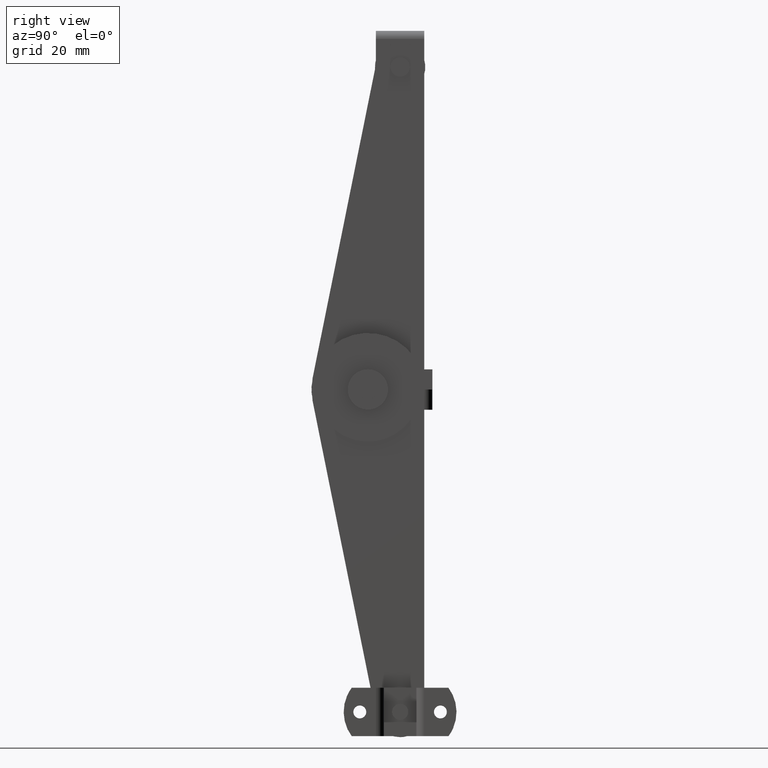
[diagram: clean part render]
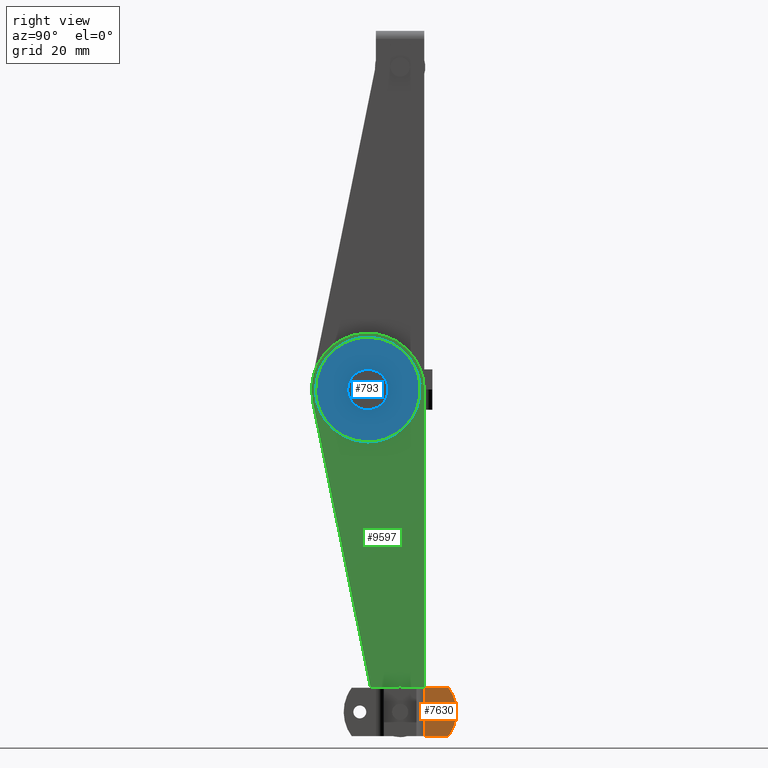
[diagram: same view with three faces highlighted in distinct colors, each labeled with its STEP entity id]
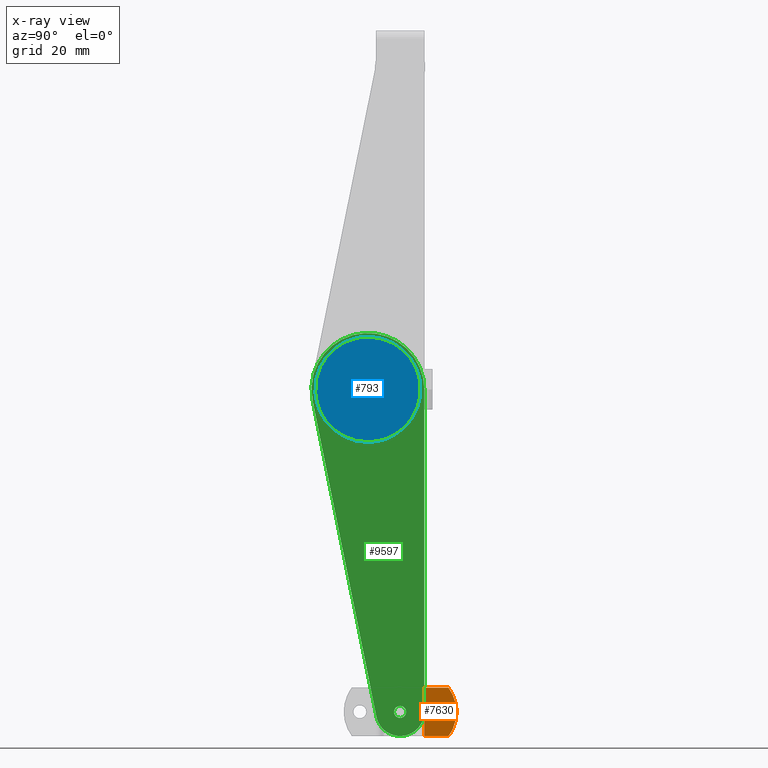
[diagram: x-ray of the same camera — body ghosted, the three highlighted faces saturated]
A machine part, right view with three faces highlighted in distinct colors.
The next image is the same camera in x-ray (body ghosted, the three faces saturated) — at least one of them is partly hidden behind the body in this view.
Their STEP definitions:

[orange] entity #7630 — the highlighted face is a freeform B-spline surface patch.
#6617=CARTESIAN_POINT('',(-2.109424E-015,10.0,-81.600000000000009));
#6618=VERTEX_POINT('',#6617);
#6619=CARTESIAN_POINT('',(-2.118055E-015,10.913344372013061,-81.313697856476921));
#6620=VERTEX_POINT('',#6619);
#6621=CARTESIAN_POINT('',(-2.109424E-015,10.0,-81.600000000000009));
#6622=CARTESIAN_POINT('',(-2.109424E-015,10.501545138603925,-81.599999999999994));
#6623=CARTESIAN_POINT('',(-2.118055E-015,10.913344372013055,-81.313697856476921));
#6631=(BOUNDED_CURVE()B_SPLINE_CURVE(2,(#6621,#6622,#6623),.UNSPECIFIED.,.F.,.U.)B_SPLINE_CURVE_WITH_KNOTS((3,3),(0.500000000000000,0.598090608945358),.UNSPECIFIED.)CURVE()GEOMETRIC_REPRESENTATION_ITEM()RATIONAL_B_SPLINE_CURVE((1.0,0.885079703242490,0.860340221597983))REPRESENTATION_ITEM(''));
#6632=EDGE_CURVE('',#6618,#6620,#6631,.T.);
#6705=CARTESIAN_POINT('',(-2.097281E-015,11.595067733961390,-80.125534553312121));
#6706=VERTEX_POINT('',#6705);
#6712=CARTESIAN_POINT('',(-2.109424E-015,10.0,-78.399999999999991));
#6713=VERTEX_POINT('',#6712);
#6714=CARTESIAN_POINT('',(-2.097281E-015,11.595067733961386,-80.125534553312121));
#6715=CARTESIAN_POINT('',(-2.109424E-015,11.599999999999998,-80.062864171360530));
#6716=CARTESIAN_POINT('',(-2.109424E-015,11.600000000000000,-80.0));
#6717=CARTESIAN_POINT('',(-2.109424E-015,11.600000000000001,-78.399999999999991));
#6718=CARTESIAN_POINT('',(-2.109424E-015,10.0,-78.399999999999991));
#6726=(BOUNDED_CURVE()B_SPLINE_CURVE(2,(#6714,#6715,#6716,#6717,#6718),.UNSPECIFIED.,.F.,.U.)B_SPLINE_CURVE_WITH_KNOTS((3,2,3),(0.736331300601047,0.750000000000000,1.0),.UNSPECIFIED.)CURVE()GEOMETRIC_REPRESENTATION_ITEM()RATIONAL_B_SPLINE_CURVE((0.969723356105619,0.983986122544189,1.0,0.707106781186548,1.0))REPRESENTATION_ITEM(''));
#6727=EDGE_CURVE('',#6706,#6713,#6726,.T.);
#6729=CARTESIAN_POINT('',(-2.109424E-015,10.0,-78.399999999999991));
#6730=CARTESIAN_POINT('',(-2.109424E-015,8.400000000000000,-78.399999999999991));
#6731=CARTESIAN_POINT('',(-2.109424E-015,8.400000000000000,-80.0));
#6732=CARTESIAN_POINT('',(-2.109424E-015,8.400000000000000,-81.600000000000009));
#6733=CARTESIAN_POINT('',(-2.109424E-015,10.0,-81.600000000000009));
#6741=(BOUNDED_CURVE()B_SPLINE_CURVE(2,(#6729,#6730,#6731,#6732,#6733),.UNSPECIFIED.,.F.,.U.)B_SPLINE_CURVE_WITH_KNOTS((3,2,3),(0.0,0.250000000000000,0.500000000000000),.UNSPECIFIED.)CURVE()GEOMETRIC_REPRESENTATION_ITEM()RATIONAL_B_SPLINE_CURVE((1.0,0.707106781186548,1.0,0.707106781186548,1.0))REPRESENTATION_ITEM(''));
#6742=EDGE_CURVE('',#6713,#6618,#6741,.T.);
#6761=CARTESIAN_POINT('',(-2.118055E-015,10.913344372013057,-81.313697856476921));
#6762=CARTESIAN_POINT('',(-2.109424E-015,11.535605594804981,-80.881072665697104));
#6763=CARTESIAN_POINT('',(-2.097281E-015,11.595067733961395,-80.125534553312121));
#6771=(BOUNDED_CURVE()B_SPLINE_CURVE(2,(#6761,#6762,#6763),.UNSPECIFIED.,.F.,.U.)B_SPLINE_CURVE_WITH_KNOTS((3,3),(0.598090608945359,0.736331300601048),.UNSPECIFIED.)CURVE()GEOMETRIC_REPRESENTATION_ITEM()RATIONAL_B_SPLINE_CURVE((0.860340221597983,0.825474467470135,0.969723356105621))REPRESENTATION_ITEM(''));
#6772=EDGE_CURVE('',#6620,#6706,#6771,.T.);
#7189=CARTESIAN_POINT('',(0.0,12.000011999975120,-74.000015999999889));
#7190=VERTEX_POINT('',#7189);
#7196=CARTESIAN_POINT('',(0.0,11.999983854799799,-86.000016000000002));
#7197=VERTEX_POINT('',#7196);
#7198=CARTESIAN_POINT('',(0.0,12.000011999975120,-74.000015999999889));
#7199=CARTESIAN_POINT('',(0.0,16.499999839368552,-80.000025559604353));
#7200=CARTESIAN_POINT('',(0.0,11.999983854799799,-86.000016000000002));
#7208=(BOUNDED_CURVE()B_SPLINE_CURVE(2,(#7198,#7199,#7200),.UNSPECIFIED.,.F.,.U.)CURVE()GEOMETRIC_REPRESENTATION_ITEM()QUASI_UNIFORM_CURVE()RATIONAL_B_SPLINE_CURVE((1.0,0.799999925385712,1.0))REPRESENTATION_ITEM(''));
#7209=EDGE_CURVE('',#7190,#7197,#7208,.T.);
#7291=CARTESIAN_POINT('',(0.0,6.0,-86.000016000000002));
#7292=VERTEX_POINT('',#7291);
#7293=CARTESIAN_POINT('',(0.0,6.0,-86.000016000000002));
#7294=CARTESIAN_POINT('',(0.0,11.999983854799799,-86.000016000000002));
#7295=QUASI_UNIFORM_CURVE('',1,(#7293,#7294),.UNSPECIFIED.,.F.,.U.);
#7296=EDGE_CURVE('',#7292,#7197,#7295,.T.);
#7409=CARTESIAN_POINT('',(0.0,6.0,-74.000016000000002));
#7410=VERTEX_POINT('',#7409);
#7424=CARTESIAN_POINT('',(0.0,6.0,-74.000016000000002));
#7425=CARTESIAN_POINT('',(0.0,12.000011999975120,-74.000015999999889));
#7426=QUASI_UNIFORM_CURVE('',1,(#7424,#7425),.UNSPECIFIED.,.F.,.U.);
#7427=EDGE_CURVE('',#7410,#7190,#7426,.T.);
#7609=CARTESIAN_POINT('',(0.0,5.600400081763249,-73.400615277598746));
#7610=CARTESIAN_POINT('',(0.0,5.600400081763249,-86.599415434940852));
#7611=CARTESIAN_POINT('',(0.0,14.399598806332969,-73.400615277598746));
#7612=CARTESIAN_POINT('',(0.0,14.399598806332969,-86.599415434940852));
#7613=B_SPLINE_SURFACE_WITH_KNOTS('',1,1,((#7609,#7611),(#7610,#7612)),.UNSPECIFIED.,.F.,.F.,.U.,(2,2),(2,2),(0.0,13.198800157342109),(0.0,8.799198724569722),.UNSPECIFIED.);
#7614=ORIENTED_EDGE('',*,*,#7209,.F.);
#7615=ORIENTED_EDGE('',*,*,#7427,.F.);
#7616=CARTESIAN_POINT('',(0.0,6.0,-74.000016000000002));
#7617=CARTESIAN_POINT('',(0.0,6.0,-86.000016000000002));
#7618=QUASI_UNIFORM_CURVE('',1,(#7616,#7617),.UNSPECIFIED.,.F.,.U.);
#7619=EDGE_CURVE('',#7410,#7292,#7618,.T.);
#7620=ORIENTED_EDGE('',*,*,#7619,.T.);
#7621=ORIENTED_EDGE('',*,*,#7296,.T.);
#7622=EDGE_LOOP('',(#7614,#7615,#7620,#7621));
#7623=FACE_OUTER_BOUND('',#7622,.T.);
#7624=ORIENTED_EDGE('',*,*,#6742,.F.);
#7625=ORIENTED_EDGE('',*,*,#6727,.F.);
#7626=ORIENTED_EDGE('',*,*,#6772,.F.);
#7627=ORIENTED_EDGE('',*,*,#6632,.F.);
#7628=EDGE_LOOP('',(#7624,#7625,#7626,#7627));
#7629=FACE_BOUND('',#7628,.T.);
#7630=ADVANCED_FACE('',(#7623,#7629),#7613,.T.);

[blue] entity #793 — the highlighted face is a freeform B-spline surface patch.
#442=CARTESIAN_POINT('',(-5.899963316634739,-9.497202197502414,-0.091572811434084));
#443=VERTEX_POINT('',#442);
#449=CARTESIAN_POINT('',(-5.899963316634739,-8.0,-1.500000000000000));
#450=VERTEX_POINT('',#449);
#451=CARTESIAN_POINT('',(-5.899963316634739,-8.0,-1.500000000000000));
#452=CARTESIAN_POINT('',(-5.899963316634740,-9.411059096332743,-1.500000000000000));
#453=CARTESIAN_POINT('',(-5.899963316634739,-9.497202197502414,-0.091572811434084));
#461=(BOUNDED_CURVE()B_SPLINE_CURVE(2,(#451,#452,#453),.UNSPECIFIED.,.F.,.U.)B_SPLINE_CURVE_WITH_KNOTS((3,3),(0.500000000000000,0.739332961750605),.UNSPECIFIED.)CURVE()GEOMETRIC_REPRESENTATION_ITEM()RATIONAL_B_SPLINE_CURVE((1.0,0.719603993858834,0.976072040620116))REPRESENTATION_ITEM(''));
#462=EDGE_CURVE('',#450,#443,#461,.T.);
#464=CARTESIAN_POINT('',(-5.899963316634739,-6.510485710456642,0.177051352003156));
#465=VERTEX_POINT('',#464);
#466=CARTESIAN_POINT('',(-5.899963316634740,-6.510485710456643,0.177051352003156));
#467=CARTESIAN_POINT('',(-5.899963316634739,-6.500000000000001,0.088836179496074));
#468=CARTESIAN_POINT('',(-5.899963316634739,-6.500000000000001,4.898425E-016));
#469=CARTESIAN_POINT('',(-5.899963316634739,-6.500000000000003,-1.500000000000000));
#470=CARTESIAN_POINT('',(-5.899963316634739,-8.0,-1.500000000000000));
#478=(BOUNDED_CURVE()B_SPLINE_CURVE(2,(#466,#467,#468,#469,#470),.UNSPECIFIED.,.F.,.U.)B_SPLINE_CURVE_WITH_KNOTS((3,2,3),(0.229562473511556,0.250000000000000,0.500000000000000),.UNSPECIFIED.)CURVE()GEOMETRIC_REPRESENTATION_ITEM()RATIONAL_B_SPLINE_CURVE((0.956026754179872,0.976055948328857,1.0,0.707106781186548,1.0))REPRESENTATION_ITEM(''));
#479=EDGE_CURVE('',#465,#450,#478,.T.);
#523=CARTESIAN_POINT('',(-5.899963316634739,-8.0,1.500000000000000));
#524=VERTEX_POINT('',#523);
#525=CARTESIAN_POINT('',(-5.899963316634739,-8.0,1.500000000000000));
#526=CARTESIAN_POINT('',(-5.899963316634739,-6.667738211105410,1.500000000000000));
#527=CARTESIAN_POINT('',(-5.899963316634739,-6.510485710456642,0.177051352003156));
#535=(BOUNDED_CURVE()B_SPLINE_CURVE(2,(#525,#526,#527),.UNSPECIFIED.,.F.,.U.)B_SPLINE_CURVE_WITH_KNOTS((3,3),(0.0,0.229562473511556),.UNSPECIFIED.)CURVE()GEOMETRIC_REPRESENTATION_ITEM()RATIONAL_B_SPLINE_CURVE((1.0,0.731050832857690,0.956026754179871))REPRESENTATION_ITEM(''));
#536=EDGE_CURVE('',#524,#465,#535,.T.);
#538=CARTESIAN_POINT('',(-5.899963316634739,-9.497202197502414,-0.091572811434084));
#539=CARTESIAN_POINT('',(-5.899963316634739,-9.500000000000000,-0.045829147085660));
#540=CARTESIAN_POINT('',(-5.899963316634739,-9.500000000000000,4.898425E-016));
#541=CARTESIAN_POINT('',(-5.899963316634739,-9.500000000000000,1.500000000000001));
#542=CARTESIAN_POINT('',(-5.899963316634739,-8.0,1.500000000000000));
#550=(BOUNDED_CURVE()B_SPLINE_CURVE(2,(#538,#539,#540,#541,#542),.UNSPECIFIED.,.F.,.U.)B_SPLINE_CURVE_WITH_KNOTS((3,2,3),(0.739332961750605,0.750000000000000,1.0),.UNSPECIFIED.)CURVE()GEOMETRIC_REPRESENTATION_ITEM()RATIONAL_B_SPLINE_CURVE((0.976072040620116,0.987502787327714,1.0,0.707106781186548,1.0))REPRESENTATION_ITEM(''));
#551=EDGE_CURVE('',#443,#524,#550,.T.);
#613=CARTESIAN_POINT('',(-5.899963316634739,4.909123842707697,1.534445050705831));
#614=VERTEX_POINT('',#613);
#620=CARTESIAN_POINT('',(-5.899963316634739,-8.0,-13.0));
#621=VERTEX_POINT('',#620);
#622=CARTESIAN_POINT('',(-5.899963316634739,4.909123842707697,1.534445050705831));
#623=CARTESIAN_POINT('',(-5.899963316634739,5.000000000000001,0.769913555644579));
#624=CARTESIAN_POINT('',(-5.899963316634739,4.999999999999999,4.898425E-016));
#625=CARTESIAN_POINT('',(-5.899963316634739,4.999999999999999,-13.0));
#626=CARTESIAN_POINT('',(-5.899963316634739,-8.0,-13.0));
#634=(BOUNDED_CURVE()B_SPLINE_CURVE(2,(#622,#623,#624,#625,#626),.UNSPECIFIED.,.F.,.U.)B_SPLINE_CURVE_WITH_KNOTS((3,2,3),(0.229562473511246,0.250000000000000,0.500000000000000),.UNSPECIFIED.)CURVE()GEOMETRIC_REPRESENTATION_ITEM()RATIONAL_B_SPLINE_CURVE((0.956026754179265,0.976055948328495,1.0,0.707106781186547,1.0))REPRESENTATION_ITEM(''));
#635=EDGE_CURVE('',#614,#621,#634,.T.);
#637=CARTESIAN_POINT('',(-5.899963316634739,-20.975752379467082,-0.793631014234179));
#638=VERTEX_POINT('',#637);
#639=CARTESIAN_POINT('',(-5.899963316634739,-8.0,-13.0));
#640=CARTESIAN_POINT('',(-5.899963316634739,-20.229178869243242,-13.0));
#641=CARTESIAN_POINT('',(-5.899963316634739,-20.975752379467078,-0.793631014234179));
#649=(BOUNDED_CURVE()B_SPLINE_CURVE(2,(#639,#640,#641),.UNSPECIFIED.,.F.,.U.)B_SPLINE_CURVE_WITH_KNOTS((3,3),(0.500000000000000,0.739332962234493),.UNSPECIFIED.)CURVE()GEOMETRIC_REPRESENTATION_ITEM()RATIONAL_B_SPLINE_CURVE((1.0,0.719603993291923,0.976072041657181))REPRESENTATION_ITEM(''));
#650=EDGE_CURVE('',#621,#638,#649,.T.);
#724=CARTESIAN_POINT('',(-5.899963316634739,-8.0,13.0));
#725=VERTEX_POINT('',#724);
#726=CARTESIAN_POINT('',(-5.899963316634739,-20.975752379467075,-0.793631014234179));
#727=CARTESIAN_POINT('',(-5.899963316634739,-20.999999999999993,-0.397185923163483));
#728=CARTESIAN_POINT('',(-5.899963316634739,-21.0,4.898425E-016));
#729=CARTESIAN_POINT('',(-5.899963316634739,-20.999999999999989,13.0));
#730=CARTESIAN_POINT('',(-5.899963316634739,-8.0,13.0));
#738=(BOUNDED_CURVE()B_SPLINE_CURVE(2,(#726,#727,#728,#729,#730),.UNSPECIFIED.,.F.,.U.)B_SPLINE_CURVE_WITH_KNOTS((3,2,3),(0.739332962234494,0.750000000000000,1.0),.UNSPECIFIED.)CURVE()GEOMETRIC_REPRESENTATION_ITEM()RATIONAL_B_SPLINE_CURVE((0.976072041657183,0.987502787894625,1.0,0.707106781186547,1.0))REPRESENTATION_ITEM(''));
#739=EDGE_CURVE('',#638,#725,#738,.T.);
#741=CARTESIAN_POINT('',(-5.899963316634739,-8.0,13.0));
#742=CARTESIAN_POINT('',(-5.899963316634739,3.546268837065187,13.000000000000002));
#743=CARTESIAN_POINT('',(-5.899963316634739,4.909123842707697,1.534445050705831));
#751=(BOUNDED_CURVE()B_SPLINE_CURVE(2,(#741,#742,#743),.UNSPECIFIED.,.F.,.U.)B_SPLINE_CURVE_WITH_KNOTS((3,3),(0.0,0.229562473511246),.UNSPECIFIED.)CURVE()GEOMETRIC_REPRESENTATION_ITEM()RATIONAL_B_SPLINE_CURVE((1.0,0.731050832858053,0.956026754179265))REPRESENTATION_ITEM(''));
#752=EDGE_CURVE('',#725,#614,#751,.T.);
#776=CARTESIAN_POINT('',(-5.899963316634770,6.298464238961536,-14.298699949606950));
#777=CARTESIAN_POINT('',(-5.899963316634770,-22.298383575995761,-14.298699949606950));
#778=CARTESIAN_POINT('',(-5.899963316634770,6.298464238961536,14.298700646981301));
#779=CARTESIAN_POINT('',(-5.899963316634770,-22.298383575995761,14.298700646981301));
#780=B_SPLINE_SURFACE_WITH_KNOTS('',1,1,((#776,#778),(#777,#779)),.UNSPECIFIED.,.F.,.F.,.U.,(2,2),(2,2),(0.0,28.596847814957300),(0.0,28.597400596588251),.UNSPECIFIED.);
#781=ORIENTED_EDGE('',*,*,#739,.F.);
#782=ORIENTED_EDGE('',*,*,#650,.F.);
#783=ORIENTED_EDGE('',*,*,#635,.F.);
#784=ORIENTED_EDGE('',*,*,#752,.F.);
#785=EDGE_LOOP('',(#781,#782,#783,#784));
#786=FACE_OUTER_BOUND('',#785,.T.);
#787=ORIENTED_EDGE('',*,*,#462,.T.);
#788=ORIENTED_EDGE('',*,*,#551,.T.);
#789=ORIENTED_EDGE('',*,*,#536,.T.);
#790=ORIENTED_EDGE('',*,*,#479,.T.);
#791=EDGE_LOOP('',(#787,#788,#789,#790));
#792=FACE_BOUND('',#791,.T.);
#793=ADVANCED_FACE('',(#786,#792),#780,.F.);

[green] entity #9597 — the highlighted face is a freeform B-spline surface patch.
#9058=CARTESIAN_POINT('',(-6.500000000000000,1.183291E-029,-78.500000000000000));
#9059=VERTEX_POINT('',#9058);
#9060=CARTESIAN_POINT('',(-6.500000000000000,1.495376000598305,-79.882311356390630));
#9061=VERTEX_POINT('',#9060);
#9062=CARTESIAN_POINT('',(-6.500000000000000,1.183291E-029,-78.500000000000000));
#9063=CARTESIAN_POINT('',(-6.500000000000001,1.386585737454543,-78.500000000000000));
#9064=CARTESIAN_POINT('',(-6.500000000000000,1.495376000598305,-79.882311356390630));
#9072=(BOUNDED_CURVE()B_SPLINE_CURVE(2,(#9062,#9063,#9064),.UNSPECIFIED.,.F.,.U.)B_SPLINE_CURVE_WITH_KNOTS((3,3),(0.0,0.236331300628728),.UNSPECIFIED.)CURVE()GEOMETRIC_REPRESENTATION_ITEM()RATIONAL_B_SPLINE_CURVE((1.0,0.723120658609928,0.969723356163387))REPRESENTATION_ITEM(''));
#9073=EDGE_CURVE('',#9059,#9061,#9072,.T.);
#9075=CARTESIAN_POINT('',(-6.500000000000000,-1.495376000598305,-80.117688643609384));
#9076=VERTEX_POINT('',#9075);
#9077=CARTESIAN_POINT('',(-6.500000000000000,-1.495376000598305,-80.117688643609384));
#9078=CARTESIAN_POINT('',(-6.500000000000000,-1.500000000000001,-80.058935160529202));
#9079=CARTESIAN_POINT('',(-6.500000000000000,-1.500000000000000,-80.0));
#9080=CARTESIAN_POINT('',(-6.500000000000001,-1.500000000000000,-78.500000000000000));
#9081=CARTESIAN_POINT('',(-6.500000000000000,1.183291E-029,-78.500000000000000));
#9089=(BOUNDED_CURVE()B_SPLINE_CURVE(2,(#9077,#9078,#9079,#9080,#9081),.UNSPECIFIED.,.F.,.U.)B_SPLINE_CURVE_WITH_KNOTS((3,2,3),(0.736331300628728,0.750000000000000,1.0),.UNSPECIFIED.)CURVE()GEOMETRIC_REPRESENTATION_ITEM()RATIONAL_B_SPLINE_CURVE((0.969723356163386,0.983986122576618,1.0,0.707106781186548,1.0))REPRESENTATION_ITEM(''));
#9090=EDGE_CURVE('',#9076,#9059,#9089,.T.);
#9157=CARTESIAN_POINT('',(-6.500000000000000,1.183291E-029,-81.500000000000000));
#9158=VERTEX_POINT('',#9157);
#9159=CARTESIAN_POINT('',(-6.500000000000001,1.495376000598305,-79.882311356390630));
#9160=CARTESIAN_POINT('',(-6.500000000000000,1.500000000000000,-79.941064839470812));
#9161=CARTESIAN_POINT('',(-6.500000000000000,1.500000000000000,-80.0));
#9162=CARTESIAN_POINT('',(-6.500000000000001,1.500000000000000,-81.500000000000000));
#9163=CARTESIAN_POINT('',(-6.500000000000000,1.183291E-029,-81.500000000000000));
#9171=(BOUNDED_CURVE()B_SPLINE_CURVE(2,(#9159,#9160,#9161,#9162,#9163),.UNSPECIFIED.,.F.,.U.)B_SPLINE_CURVE_WITH_KNOTS((3,2,3),(0.236331300628728,0.250000000000000,0.500000000000000),.UNSPECIFIED.)CURVE()GEOMETRIC_REPRESENTATION_ITEM()RATIONAL_B_SPLINE_CURVE((0.969723356163387,0.983986122576619,1.0,0.707106781186548,1.0))REPRESENTATION_ITEM(''));
#9172=EDGE_CURVE('',#9061,#9158,#9171,.T.);
#9206=CARTESIAN_POINT('',(-6.500000000000000,1.183291E-029,-81.500000000000000));
#9207=CARTESIAN_POINT('',(-6.500000000000000,-1.386585737454533,-81.500000000000000));
#9208=CARTESIAN_POINT('',(-6.500000000000000,-1.495376000598305,-80.117688643609384));
#9216=(BOUNDED_CURVE()B_SPLINE_CURVE(2,(#9206,#9207,#9208),.UNSPECIFIED.,.F.,.U.)B_SPLINE_CURVE_WITH_KNOTS((3,3),(0.500000000000000,0.736331300628727),.UNSPECIFIED.)CURVE()GEOMETRIC_REPRESENTATION_ITEM()RATIONAL_B_SPLINE_CURVE((1.0,0.723120658609930,0.969723356163385))REPRESENTATION_ITEM(''));
#9217=EDGE_CURVE('',#9158,#9076,#9216,.T.);
#9240=CARTESIAN_POINT('',(-6.500000000000000,-8.0,1.500000000000000));
#9241=VERTEX_POINT('',#9240);
#9242=CARTESIAN_POINT('',(-6.500000000000001,-6.504623999401696,0.117688643609388));
#9243=VERTEX_POINT('',#9242);
#9244=CARTESIAN_POINT('',(-6.500000000000000,-8.0,1.500000000000000));
#9245=CARTESIAN_POINT('',(-6.500000000000000,-6.613414262545469,1.500000000000001));
#9246=CARTESIAN_POINT('',(-6.500000000000002,-6.504623999401696,0.117688643609388));
#9254=(BOUNDED_CURVE()B_SPLINE_CURVE(2,(#9244,#9245,#9246),.UNSPECIFIED.,.F.,.U.)B_SPLINE_CURVE_WITH_KNOTS((3,3),(0.0,0.236331300628727),.UNSPECIFIED.)CURVE()GEOMETRIC_REPRESENTATION_ITEM()RATIONAL_B_SPLINE_CURVE((1.0,0.723120658609930,0.969723356163385))REPRESENTATION_ITEM(''));
#9255=EDGE_CURVE('',#9241,#9243,#9254,.T.);
#9257=CARTESIAN_POINT('',(-6.500000000000000,-9.495376000598306,-0.117688643609387));
#9258=VERTEX_POINT('',#9257);
#9259=CARTESIAN_POINT('',(-6.500000000000000,-9.495376000598307,-0.117688643609387));
#9260=CARTESIAN_POINT('',(-6.500000000000001,-9.500000000000000,-0.058935160529206));
#9261=CARTESIAN_POINT('',(-6.500000000000000,-9.500000000000000,4.898425E-016));
#9262=CARTESIAN_POINT('',(-6.500000000000001,-9.500000000000000,1.500000000000001));
#9263=CARTESIAN_POINT('',(-6.500000000000000,-8.0,1.500000000000000));
#9271=(BOUNDED_CURVE()B_SPLINE_CURVE(2,(#9259,#9260,#9261,#9262,#9263),.UNSPECIFIED.,.F.,.U.)B_SPLINE_CURVE_WITH_KNOTS((3,2,3),(0.736331300628727,0.750000000000000,1.0),.UNSPECIFIED.)CURVE()GEOMETRIC_REPRESENTATION_ITEM()RATIONAL_B_SPLINE_CURVE((0.969723356163385,0.983986122576618,1.0,0.707106781186548,1.0))REPRESENTATION_ITEM(''));
#9272=EDGE_CURVE('',#9258,#9241,#9271,.T.);
#9339=CARTESIAN_POINT('',(-6.500000000000000,-8.0,-1.500000000000000));
#9340=VERTEX_POINT('',#9339);
#9341=CARTESIAN_POINT('',(-6.500000000000002,-6.504623999401696,0.117688643609388));
#9342=CARTESIAN_POINT('',(-6.500000000000001,-6.500000000000001,0.058935160529207));
#9343=CARTESIAN_POINT('',(-6.500000000000000,-6.500000000000001,4.898425E-016));
#9344=CARTESIAN_POINT('',(-6.500000000000001,-6.500000000000003,-1.500000000000000));
#9345=CARTESIAN_POINT('',(-6.500000000000000,-8.0,-1.500000000000000));
#9353=(BOUNDED_CURVE()B_SPLINE_CURVE(2,(#9341,#9342,#9343,#9344,#9345),.UNSPECIFIED.,.F.,.U.)B_SPLINE_CURVE_WITH_KNOTS((3,2,3),(0.236331300628727,0.250000000000000,0.500000000000000),.UNSPECIFIED.)CURVE()GEOMETRIC_REPRESENTATION_ITEM()RATIONAL_B_SPLINE_CURVE((0.969723356163385,0.983986122576618,1.0,0.707106781186548,1.0))REPRESENTATION_ITEM(''));
#9354=EDGE_CURVE('',#9243,#9340,#9353,.T.);
#9388=CARTESIAN_POINT('',(-6.500000000000000,-8.0,-1.500000000000000));
#9389=CARTESIAN_POINT('',(-6.500000000000000,-9.386585737454535,-1.499999999999999));
#9390=CARTESIAN_POINT('',(-6.500000000000000,-9.495376000598307,-0.117688643609387));
#9398=(BOUNDED_CURVE()B_SPLINE_CURVE(2,(#9388,#9389,#9390),.UNSPECIFIED.,.F.,.U.)B_SPLINE_CURVE_WITH_KNOTS((3,3),(0.500000000000000,0.736331300628727),.UNSPECIFIED.)CURVE()GEOMETRIC_REPRESENTATION_ITEM()RATIONAL_B_SPLINE_CURVE((1.0,0.723120658609930,0.969723356163385))REPRESENTATION_ITEM(''));
#9399=EDGE_CURVE('',#9340,#9258,#9398,.T.);
#9420=CARTESIAN_POINT('',(-6.500000000000000,6.0,-0.000001221730448));
#9421=VERTEX_POINT('',#9420);
#9435=CARTESIAN_POINT('',(-6.500000000000000,6.000000000000110,-5.0));
#9436=VERTEX_POINT('',#9435);
#9437=CARTESIAN_POINT('',(-6.500000000000000,6.0,-0.000001221730448));
#9438=CARTESIAN_POINT('',(-6.500000000000000,6.000000000000110,-5.0));
#9439=QUASI_UNIFORM_CURVE('',1,(#9437,#9438),.UNSPECIFIED.,.F.,.U.);
#9440=EDGE_CURVE('',#9421,#9436,#9439,.T.);
#9529=CARTESIAN_POINT('',(-6.500000000000000,7.398435708242641,-90.994918476295425));
#9530=CARTESIAN_POINT('',(-6.500000000000000,-23.395148420930170,-90.994918476295425));
#9531=CARTESIAN_POINT('',(-6.500000000000000,7.398435708242641,18.994131818566728));
#9532=CARTESIAN_POINT('',(-6.500000000000000,-23.395148420930170,18.994131818566728));
#9533=B_SPLINE_SURFACE_WITH_KNOTS('',1,1,((#9529,#9531),(#9530,#9532)),.UNSPECIFIED.,.F.,.F.,.U.,(2,2),(2,2),(0.0,30.793584129172810),(0.0,109.989050294862200),.UNSPECIFIED.);
#9534=CARTESIAN_POINT('',(-6.500000000000000,-21.717654369736650,-2.797491482104180));
#9535=VERTEX_POINT('',#9534);
#9536=CARTESIAN_POINT('',(-6.500000000000000,-21.717654369736628,-2.797491482104177));
#9537=CARTESIAN_POINT('',(-6.500000000000000,-23.460367863313653,5.748000621551682));
#9538=CARTESIAN_POINT('',(-6.500000000000000,-16.558346633245868,11.079472140188320));
#9539=CARTESIAN_POINT('',(-6.500000000000000,-9.656325403178091,16.410943658824962));
#9540=CARTESIAN_POINT('',(-6.500000000000000,-1.828162321047048,12.566161691807750));
#9541=CARTESIAN_POINT('',(-6.500000000000000,6.000000761083995,8.721379724790545));
#9542=CARTESIAN_POINT('',(-6.500000000000000,6.0,-0.000001221730448));
#9550=(BOUNDED_CURVE()B_SPLINE_CURVE(2,(#9536,#9537,#9538,#9539,#9540,#9541,#9542),.UNSPECIFIED.,.F.,.U.)B_SPLINE_CURVE_WITH_KNOTS((3,2,2,3),(0.0,0.333333333333333,0.666666666666667,1.0),.UNSPECIFIED.)CURVE()GEOMETRIC_REPRESENTATION_ITEM()RATIONAL_B_SPLINE_CURVE((1.0,0.848777199908123,1.0,0.848777199908123,1.0,0.848777199908123,1.0))REPRESENTATION_ITEM(''));
#9551=EDGE_CURVE('',#9535,#9421,#9550,.T.);
#9552=ORIENTED_EDGE('',*,*,#9551,.F.);
#9553=CARTESIAN_POINT('',(-6.500000000000000,-5.878711889223000,-81.200295011158303));
#9554=VERTEX_POINT('',#9553);
#9555=CARTESIAN_POINT('',(-6.500000000000000,-5.878711889223000,-81.200295011158303));
#9556=CARTESIAN_POINT('',(-6.500000000000000,-21.717654369736650,-2.797491482104180));
#9557=QUASI_UNIFORM_CURVE('',1,(#9555,#9556),.UNSPECIFIED.,.F.,.U.);
#9558=EDGE_CURVE('',#9554,#9535,#9557,.T.);
#9559=ORIENTED_EDGE('',*,*,#9558,.F.);
#9560=CARTESIAN_POINT('',(-6.500000000000000,6.000000000000110,-79.999983999999898));
#9561=VERTEX_POINT('',#9560);
#9562=CARTESIAN_POINT('',(-6.500000000000000,6.0,-79.999983999999898));
#9563=CARTESIAN_POINT('',(-6.500000000000000,6.000000000000001,-85.424254417550614));
#9564=CARTESIAN_POINT('',(-6.500000000000000,0.603211681195740,-85.969584963855780));
#9565=CARTESIAN_POINT('',(-6.500000000000000,-4.793576637608520,-86.514915510160961));
#9566=CARTESIAN_POINT('',(-6.500000000000000,-5.878711889223003,-81.200295011158303));
#9574=(BOUNDED_CURVE()B_SPLINE_CURVE(2,(#9562,#9563,#9564,#9565,#9566),.UNSPECIFIED.,.F.,.U.)B_SPLINE_CURVE_WITH_KNOTS((3,2,3),(0.0,0.500000000000000,1.0),.UNSPECIFIED.)CURVE()GEOMETRIC_REPRESENTATION_ITEM()RATIONAL_B_SPLINE_CURVE((1.0,0.741800269681567,1.0,0.741800269681567,1.0))REPRESENTATION_ITEM(''));
#9575=EDGE_CURVE('',#9561,#9554,#9574,.T.);
#9576=ORIENTED_EDGE('',*,*,#9575,.F.);
#9577=CARTESIAN_POINT('',(-6.500000000000000,6.000000000000110,-5.0));
#9578=CARTESIAN_POINT('',(-6.500000000000000,6.000000000000110,-79.999983999999898));
#9579=QUASI_UNIFORM_CURVE('',1,(#9577,#9578),.UNSPECIFIED.,.F.,.U.);
#9580=EDGE_CURVE('',#9436,#9561,#9579,.T.);
#9581=ORIENTED_EDGE('',*,*,#9580,.F.);
#9582=ORIENTED_EDGE('',*,*,#9440,.F.);
#9583=EDGE_LOOP('',(#9552,#9559,#9576,#9581,#9582));
#9584=FACE_OUTER_BOUND('',#9583,.T.);
#9585=ORIENTED_EDGE('',*,*,#9399,.T.);
#9586=ORIENTED_EDGE('',*,*,#9272,.T.);
#9587=ORIENTED_EDGE('',*,*,#9255,.T.);
#9588=ORIENTED_EDGE('',*,*,#9354,.T.);
#9589=EDGE_LOOP('',(#9585,#9586,#9587,#9588));
#9590=FACE_BOUND('',#9589,.T.);
#9591=ORIENTED_EDGE('',*,*,#9217,.T.);
#9592=ORIENTED_EDGE('',*,*,#9090,.T.);
#9593=ORIENTED_EDGE('',*,*,#9073,.T.);
#9594=ORIENTED_EDGE('',*,*,#9172,.T.);
#9595=EDGE_LOOP('',(#9591,#9592,#9593,#9594));
#9596=FACE_BOUND('',#9595,.T.);
#9597=ADVANCED_FACE('',(#9584,#9590,#9596),#9533,.F.);